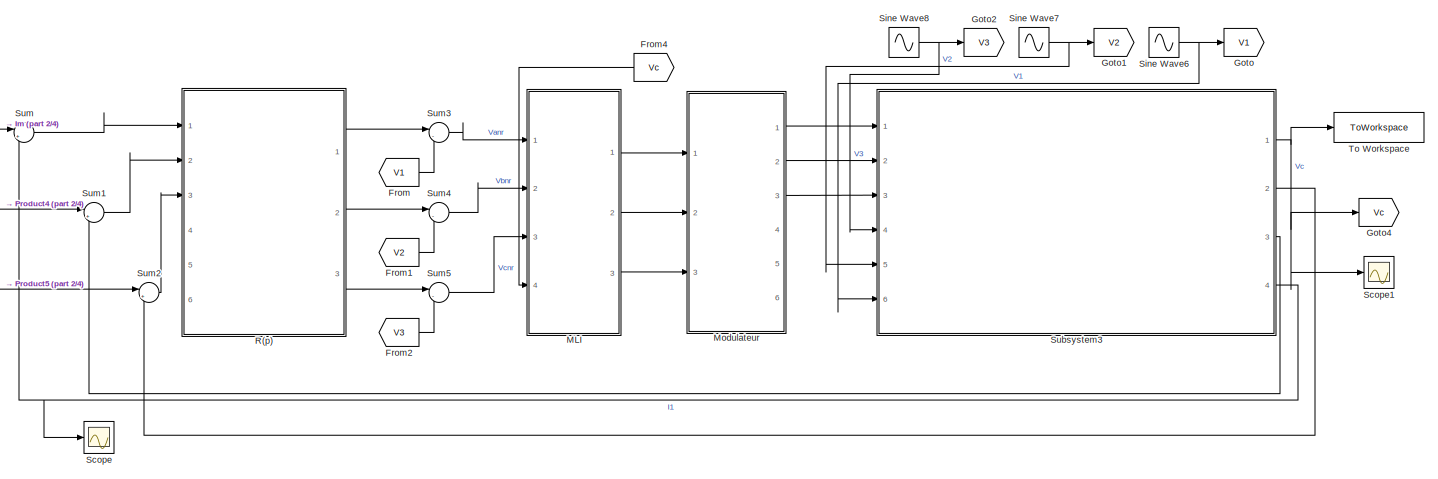
[diagram: root canvas - part 1/4, top center region]
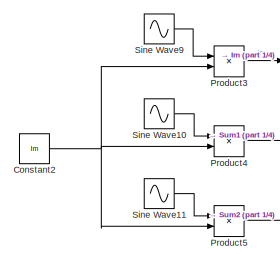
[diagram: root canvas - part 2/4, top left region]
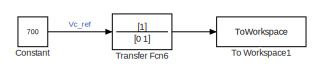
[diagram: root canvas - part 3/4, middle left region]
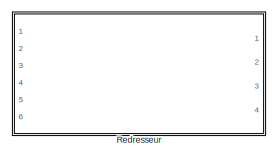
[diagram: root canvas - part 4/4, bottom right region]
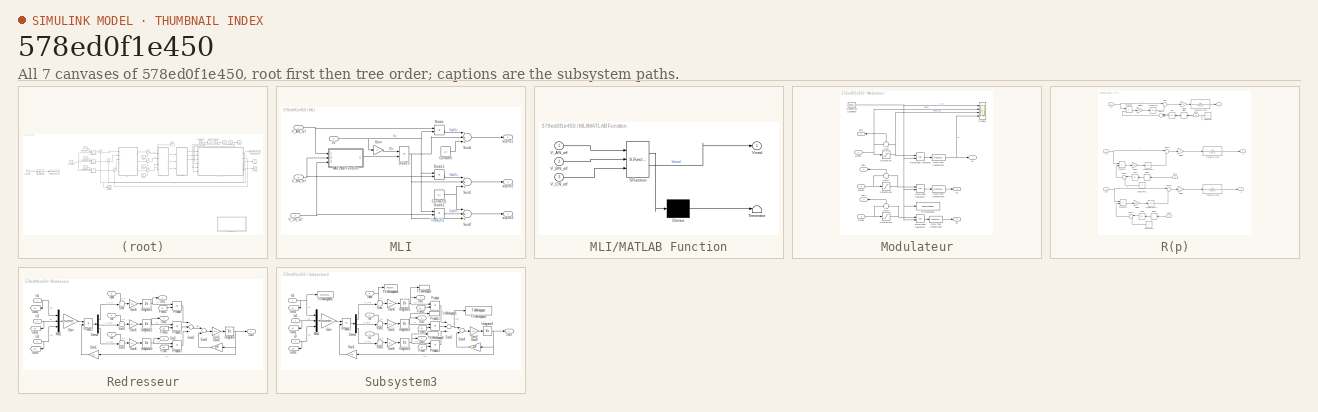
[diagram: thumbnail index - all 7 canvases of the model, root first then tree order]
MODEL slx_578ed0f1e450
KIND model
CONFIG AbsTol = auto
CONFIG EnableMultiTasking = off
CONFIG FixedStep = 1e-6
CONFIG MaxStep = auto
CONFIG MinStep = auto
CONFIG RelTol = 1e-3
CONFIG SampleTimeConstraint = Unconstrained
CONFIG Solver = ode8
CONFIG SolverName = ode8
CONFIG StartTime = 0.0
CONFIG StopTime = 0.1
BLOCK [Constant] Constant
  Value = 700
BLOCK [Constant] Constant2
  Value = Im
BLOCK [From] From
  GotoTag = V1
BLOCK [From] From1
  GotoTag = V2
BLOCK [From] From2
  GotoTag = V3
BLOCK [From] From4
  GotoTag = Vc
BLOCK [Goto] Goto
  GotoTag = V1
BLOCK [Goto] Goto1
  GotoTag = V2
BLOCK [Goto] Goto2
  GotoTag = V3
BLOCK [Goto] Goto4
  GotoTag = Vc
BLOCK [SubSystem] MLI
  Ports = [4, 3]
  RequestExecContextInheritance = off
BLOCK [Constant] MLI/Constant
  Value = 1/2
BLOCK [Constant] MLI/Constant1
  Value = 1/2
BLOCK [Product] MLI/Divide
  InputSameDT = off
  Inputs = */
  OutDataTypeStr = Inherit: Inherit via internal rule
  Ports = [2, 1]
  RndMeth = Floor
  SaturateOnIntegerOverflow = off
BLOCK [Product] MLI/Divide1
  InputSameDT = off
  Inputs = /*
  OutDataTypeStr = Inherit: Inherit via internal rule
  Ports = [2, 1]
  RndMeth = Floor
  SaturateOnIntegerOverflow = off
BLOCK [Product] MLI/Divide2
  InputSameDT = off
  Inputs = /*
  OutDataTypeStr = Inherit: Inherit via internal rule
  Ports = [2, 1]
  RndMeth = Floor
  SaturateOnIntegerOverflow = off
BLOCK [Product] MLI/Divide3
  InputSameDT = off
  Inputs = /*
  OutDataTypeStr = Inherit: Inherit via internal rule
  Ports = [2, 1]
  RndMeth = Floor
  SaturateOnIntegerOverflow = off
BLOCK [Gain] MLI/Gain
  Gain = 2
  OutDataTypeStr = Inherit: Inherit via internal rule
  ParamDataTypeStr = Inherit: Inherit via internal rule
  SaturateOnIntegerOverflow = off
BLOCK [SubSystem] MLI/MATLAB Function
  ErrorFcn = Stateflow.Translate.translate
  PermitHierarchicalResolution = ExplicitOnly
  Ports = [3, 1]
  RequestExecContextInheritance = off
  SFBlockType = MATLAB Function
  TreatAsAtomicUnit = on
BLOCK [Demux] MLI/MATLAB Function/ Demux 
  DisplayOption = bar
  Outputs = 1
  Ports = [1, 1]
BLOCK [S-Function] MLI/MATLAB Function/ SFunction 
  EnableBusSupport = on
  FunctionName = sf_sfun
  PortCounts = [3 2]
  Ports = [3, 2]
  SFcnIsStateOwnerBlock = off
  SFunctionDeploymentMode = off
  Tag = Stateflow S-Function Redresseur_MLI_3Ph_MLI_antiwindup_sign 2
BLOCK [Terminator] MLI/MATLAB Function/ Terminator 
BLOCK [Inport] MLI/MATLAB Function/V_AN_ref
  IconDisplay = Port number
BLOCK [Inport] MLI/MATLAB Function/V_BN_ref
  IconDisplay = Port number
  Port = 2
BLOCK [Inport] MLI/MATLAB Function/V_CN_ref
  IconDisplay = Port number
  Port = 3
BLOCK [Outport] MLI/MATLAB Function/Vmed
  IconDisplay = Port number
  VectorParamsAs1DForOutWhenUnconnected = on
BLOCK [Sum] MLI/Sum1
  InputSameDT = off
  Inputs = +++
  OutDataTypeStr = Inherit: Inherit via internal rule
  Ports = [3, 1]
  SaturateOnIntegerOverflow = off
BLOCK [Sum] MLI/Sum2
  InputSameDT = off
  Inputs = +++
  OutDataTypeStr = Inherit: Inherit via internal rule
  Ports = [3, 1]
  SaturateOnIntegerOverflow = off
BLOCK [Sum] MLI/Sum3
  InputSameDT = off
  Inputs = +++
  OutDataTypeStr = Inherit: Inherit via internal rule
  Ports = [3, 1]
  SaturateOnIntegerOverflow = off
BLOCK [Inport] MLI/V_AN_ref
  IconDisplay = Port number
BLOCK [Inport] MLI/V_BN_ref
  IconDisplay = Port number
  Port = 2
BLOCK [Inport] MLI/V_CN_ref
  IconDisplay = Port number
  Port = 3
BLOCK [Inport] MLI/Vc
  IconDisplay = Port number
  Port = 4
BLOCK [Outport] MLI/alpha1
  IconDisplay = Port number
  VectorParamsAs1DForOutWhenUnconnected = on
BLOCK [Outport] MLI/alpha2
  IconDisplay = Port number
  Port = 2
  VectorParamsAs1DForOutWhenUnconnected = on
BLOCK [Outport] MLI/alpha3
  IconDisplay = Port number
  Port = 3
  VectorParamsAs1DForOutWhenUnconnected = on
BLOCK [SubSystem] Modulateur
  Ports = [3, 6]
  RequestExecContextInheritance = off
BLOCK [DataTypeConversion] Modulateur/Data Type Conversion
  RndMeth = Floor
  SaturateOnIntegerOverflow = off
BLOCK [DataTypeConversion] Modulateur/Data Type Conversion1
  RndMeth = Floor
  SaturateOnIntegerOverflow = off
BLOCK [DataTypeConversion] Modulateur/Data Type Conversion2
  RndMeth = Floor
  SaturateOnIntegerOverflow = off
BLOCK [RelationalOperator] Modulateur/Relational Operator
  InputSameDT = off
  OutDataTypeStr = boolean
  Ports = [2, 1]
  RndMeth = Simplest
BLOCK [RelationalOperator] Modulateur/Relational Operator1
  InputSameDT = off
  OutDataTypeStr = boolean
  Ports = [2, 1]
  RndMeth = Simplest
BLOCK [RelationalOperator] Modulateur/Relational Operator2
  InputSameDT = off
  OutDataTypeStr = boolean
  Ports = [2, 1]
  RndMeth = Simplest
BLOCK [Reference] Modulateur/Repeating Sequence  REF=simulink/Sources/Repeating
Sequence
  Ports = [0, 1]
  SourceBlock = simulink/Sources/Repeating\nSequence
  SourceProductBaseCode = SL
  SourceProductName = Simulink
  SourceType = Repeating table
BLOCK [Saturate] Modulateur/Saturation
  InputPortMap = u0
  LowerLimit = 0
  Ports = [1, 1]
  UpperLimit = 1
BLOCK [Saturate] Modulateur/Saturation1
  InputPortMap = u0
  LowerLimit = 0
  Ports = [1, 1]
  UpperLimit = 1
BLOCK [Saturate] Modulateur/Saturation2
  InputPortMap = u0
  LowerLimit = 0
  Ports = [1, 1]
  UpperLimit = 1
BLOCK [Scope] Modulateur/Scope1
  Floating = off
  NumInputPorts = 4
  Ports = [4]
  ScopeSpecificationString = Simulink.scopes.TimeScopeBlockCfg('CurrentConfiguration', extmgr.ConfigurationSet(extmgr.Configuration('Core','General UI',true),extmgr.Configuration('Core','Source UI',true),extmgr.Configuration('Sources','WiredSimulink',true,'DataLoggingVariableName','ScopeData1'),extmgr.Configuration('Visuals','Time Domain',true,'SerializedDisplays',{struct('MinYLimReal','-0.125','MaxYLimReal','1.125','YLabelRe...<+1516ch>
BLOCK [Sum] Modulateur/Sum
  IconShape = round
  InputSameDT = off
  Inputs = +-
  OutDataTypeStr = Inherit: Inherit via internal rule
  Ports = [2, 1]
  SaturateOnIntegerOverflow = off
BLOCK [Sum] Modulateur/Sum1
  IconShape = round
  InputSameDT = off
  Inputs = +-
  OutDataTypeStr = Inherit: Inherit via internal rule
  Ports = [2, 1]
  SaturateOnIntegerOverflow = off
BLOCK [Sum] Modulateur/Sum2
  IconShape = round
  InputSameDT = off
  Inputs = +-
  OutDataTypeStr = Inherit: Inherit via internal rule
  Ports = [2, 1]
  SaturateOnIntegerOverflow = off
BLOCK [ToWorkspace] Modulateur/To Workspace
  FixptAsFi = on
  MaxDataPoints = inf
  Ports = [1]
  SampleTime = -1
  Save2DSignal = 3-D array (concatenate along third dimension)
  SaveFormat = Timeseries
  VariableName = carier
BLOCK [Inport] Modulateur/alpha1
  IconDisplay = Port number
BLOCK [Inport] Modulateur/alpha2
  IconDisplay = Port number
  Port = 2
BLOCK [Inport] Modulateur/alpha3
  IconDisplay = Port number
  Port = 3
BLOCK [Outport] Modulateur/sat1
  IconDisplay = Port number
  Port = 4
  VectorParamsAs1DForOutWhenUnconnected = on
BLOCK [Outport] Modulateur/sat2
  IconDisplay = Port number
  Port = 5
  VectorParamsAs1DForOutWhenUnconnected = on
BLOCK [Outport] Modulateur/sat3
  IconDisplay = Port number
  Port = 6
  VectorParamsAs1DForOutWhenUnconnected = on
BLOCK [Outport] Modulateur/u1
  IconDisplay = Port number
  VectorParamsAs1DForOutWhenUnconnected = on
BLOCK [Outport] Modulateur/u2
  IconDisplay = Port number
  Port = 2
  VectorParamsAs1DForOutWhenUnconnected = on
BLOCK [Outport] Modulateur/u3
  IconDisplay = Port number
  Port = 3
  VectorParamsAs1DForOutWhenUnconnected = on
BLOCK [Product] Product3
  InputSameDT = off
  OutDataTypeStr = Inherit: Inherit via internal rule
  Ports = [2, 1]
  RndMeth = Floor
  SaturateOnIntegerOverflow = off
BLOCK [Product] Product4
  InputSameDT = off
  OutDataTypeStr = Inherit: Inherit via internal rule
  Ports = [2, 1]
  RndMeth = Floor
  SaturateOnIntegerOverflow = off
BLOCK [Product] Product5
  InputSameDT = off
  OutDataTypeStr = Inherit: Inherit via internal rule
  Ports = [2, 1]
  RndMeth = Floor
  SaturateOnIntegerOverflow = off
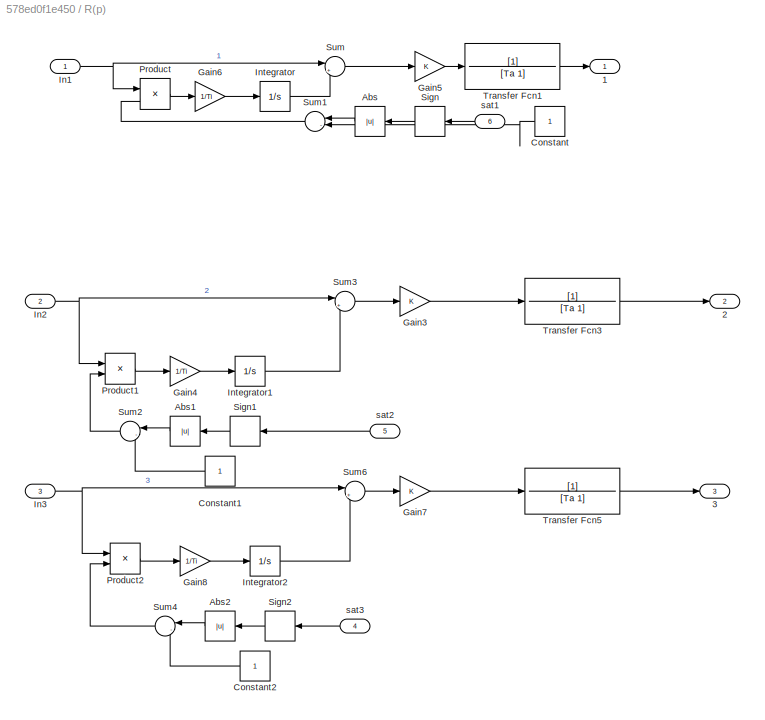
BLOCK [SubSystem] R(p)
  Ports = [6, 3]
  RequestExecContextInheritance = off
BLOCK [Outport] R(p)/1
  IconDisplay = Port number
  VectorParamsAs1DForOutWhenUnconnected = on
BLOCK [Outport] R(p)/2
  IconDisplay = Port number
  Port = 2
  VectorParamsAs1DForOutWhenUnconnected = on
BLOCK [Outport] R(p)/3
  IconDisplay = Port number
  Port = 3
  VectorParamsAs1DForOutWhenUnconnected = on
BLOCK [Abs] R(p)/Abs
  SaturateOnIntegerOverflow = off
BLOCK [Abs] R(p)/Abs1
  SaturateOnIntegerOverflow = off
BLOCK [Abs] R(p)/Abs2
  SaturateOnIntegerOverflow = off
BLOCK [Constant] R(p)/Constant
BLOCK [Constant] R(p)/Constant1
BLOCK [Constant] R(p)/Constant2
BLOCK [Gain] R(p)/Gain3
  Gain = K
  OutDataTypeStr = Inherit: Inherit via internal rule
  ParamDataTypeStr = Inherit: Inherit via internal rule
  SaturateOnIntegerOverflow = off
BLOCK [Gain] R(p)/Gain4
  Gain = 1/Ti
  OutDataTypeStr = Inherit: Inherit via internal rule
  ParamDataTypeStr = Inherit: Inherit via internal rule
  SaturateOnIntegerOverflow = off
BLOCK [Gain] R(p)/Gain5
  Gain = K
  OutDataTypeStr = Inherit: Inherit via internal rule
  ParamDataTypeStr = Inherit: Inherit via internal rule
  SaturateOnIntegerOverflow = off
BLOCK [Gain] R(p)/Gain6
  Gain = 1/Ti
  OutDataTypeStr = Inherit: Inherit via internal rule
  ParamDataTypeStr = Inherit: Inherit via internal rule
  SaturateOnIntegerOverflow = off
BLOCK [Gain] R(p)/Gain7
  Gain = K
  OutDataTypeStr = Inherit: Inherit via internal rule
  ParamDataTypeStr = Inherit: Inherit via internal rule
  SaturateOnIntegerOverflow = off
BLOCK [Gain] R(p)/Gain8
  Gain = 1/Ti
  OutDataTypeStr = Inherit: Inherit via internal rule
  ParamDataTypeStr = Inherit: Inherit via internal rule
  SaturateOnIntegerOverflow = off
BLOCK [Inport] R(p)/In1
  IconDisplay = Signal name
BLOCK [Inport] R(p)/In2
  IconDisplay = Signal name
  Port = 2
BLOCK [Inport] R(p)/In3
  IconDisplay = Signal name
  Port = 3
BLOCK [Integrator] R(p)/Integrator
  InitialCondition = 1
  Ports = [1, 1]
BLOCK [Integrator] R(p)/Integrator1
  InitialCondition = 1
  Ports = [1, 1]
BLOCK [Integrator] R(p)/Integrator2
  Ports = [1, 1]
BLOCK [Product] R(p)/Product
  InputSameDT = off
  OutDataTypeStr = Inherit: Inherit via internal rule
  Ports = [2, 1]
  RndMeth = Floor
  SaturateOnIntegerOverflow = off
BLOCK [Product] R(p)/Product1
  InputSameDT = off
  OutDataTypeStr = Inherit: Inherit via internal rule
  Ports = [2, 1]
  RndMeth = Floor
  SaturateOnIntegerOverflow = off
BLOCK [Product] R(p)/Product2
  InputSameDT = off
  OutDataTypeStr = Inherit: Inherit via internal rule
  Ports = [2, 1]
  RndMeth = Floor
  SaturateOnIntegerOverflow = off
BLOCK [Signum] R(p)/Sign
BLOCK [Signum] R(p)/Sign1
BLOCK [Signum] R(p)/Sign2
BLOCK [Sum] R(p)/Sum
  IconShape = round
  InputSameDT = off
  Inputs = |++
  OutDataTypeStr = Inherit: Inherit via internal rule
  Ports = [2, 1]
  SaturateOnIntegerOverflow = off
BLOCK [Sum] R(p)/Sum1
  IconShape = round
  InputSameDT = off
  Inputs = |-+
  OutDataTypeStr = Inherit: Inherit via internal rule
  Ports = [2, 1]
  SaturateOnIntegerOverflow = off
BLOCK [Sum] R(p)/Sum2
  IconShape = round
  InputSameDT = off
  Inputs = |-+
  OutDataTypeStr = Inherit: Inherit via internal rule
  Ports = [2, 1]
  SaturateOnIntegerOverflow = off
BLOCK [Sum] R(p)/Sum3
  IconShape = round
  InputSameDT = off
  Inputs = |++
  OutDataTypeStr = Inherit: Inherit via internal rule
  Ports = [2, 1]
  SaturateOnIntegerOverflow = off
BLOCK [Sum] R(p)/Sum4
  IconShape = round
  InputSameDT = off
  Inputs = |-+
  OutDataTypeStr = Inherit: Inherit via internal rule
  Ports = [2, 1]
  SaturateOnIntegerOverflow = off
BLOCK [Sum] R(p)/Sum6
  IconShape = round
  InputSameDT = off
  Inputs = |++
  OutDataTypeStr = Inherit: Inherit via internal rule
  Ports = [2, 1]
  SaturateOnIntegerOverflow = off
BLOCK [TransferFcn] R(p)/Transfer Fcn1
  Denominator = [Ta 1]
BLOCK [TransferFcn] R(p)/Transfer Fcn3
  Denominator = [Ta 1]
BLOCK [TransferFcn] R(p)/Transfer Fcn5
  Denominator = [Ta 1]
BLOCK [Inport] R(p)/sat1
  IconDisplay = Port number
  Port = 6
BLOCK [Inport] R(p)/sat2
  IconDisplay = Port number
  Port = 5
BLOCK [Inport] R(p)/sat3
  IconDisplay = Port number
  Port = 4
BLOCK [SubSystem] Redresseur
  Commented = on
  Ports = [6, 4]
  RequestExecContextInheritance = off
BLOCK [Demux] Redresseur/Demux
  DisplayOption = bar
  Outputs = 3
  Ports = [1, 3]
BLOCK [From] Redresseur/From
  GotoTag = u3
BLOCK [From] Redresseur/From2
  GotoTag = u1
BLOCK [From] Redresseur/From3
  GotoTag = u2
BLOCK [Gain] Redresseur/Gain
  Gain = inverter_matrix
  Multiplication = Matrix(K*u)
  OutDataTypeStr = Inherit: Inherit via internal rule
  ParamDataTypeStr = Inherit: Inherit via internal rule
  SaturateOnIntegerOverflow = off
BLOCK [Gain] Redresseur/Gain1
  Gain = 1/3
  OutDataTypeStr = Inherit: Inherit via internal rule
  ParamDataTypeStr = Inherit: Inherit via internal rule
  SaturateOnIntegerOverflow = off
BLOCK [Gain] Redresseur/Gain2
  Gain = 1/C
  OutDataTypeStr = Inherit: Inherit via internal rule
  ParamDataTypeStr = Inherit: Inherit via internal rule
  SaturateOnIntegerOverflow = off
BLOCK [Gain] Redresseur/Gain3
  Gain = 1/R
  OutDataTypeStr = Inherit: Inherit via internal rule
  ParamDataTypeStr = Inherit: Inherit via internal rule
  SaturateOnIntegerOverflow = off
BLOCK [Gain] Redresseur/Gain4
  Gain = 1/L
  OutDataTypeStr = Inherit: Inherit via internal rule
  ParamDataTypeStr = Inherit: Inherit via internal rule
  SaturateOnIntegerOverflow = off
BLOCK [Gain] Redresseur/Gain5
  Gain = 1/L
  OutDataTypeStr = Inherit: Inherit via internal rule
  ParamDataTypeStr = Inherit: Inherit via internal rule
  SaturateOnIntegerOverflow = off
BLOCK [Gain] Redresseur/Gain6
  Gain = 1/L
  OutDataTypeStr = Inherit: Inherit via internal rule
  ParamDataTypeStr = Inherit: Inherit via internal rule
  SaturateOnIntegerOverflow = off
BLOCK [Goto] Redresseur/Goto1
  GotoTag = u2
BLOCK [Goto] Redresseur/Goto2
  GotoTag = u1
BLOCK [Goto] Redresseur/Goto3
  GotoTag = u3
BLOCK [Inport] Redresseur/In1
  IconDisplay = Signal name
BLOCK [Inport] Redresseur/In2
  IconDisplay = Signal name
  Port = 2
BLOCK [Inport] Redresseur/In3
  IconDisplay = Signal name
  Port = 3
BLOCK [Inport] Redresseur/In4
  IconDisplay = Signal name
  Port = 5
BLOCK [Inport] Redresseur/In5
  IconDisplay = Signal name
  Port = 4
BLOCK [Inport] Redresseur/Input
  IconDisplay = Signal name
  Port = 6
BLOCK [Integrator] Redresseur/Integrator
  Ports = [1, 1]
BLOCK [Integrator] Redresseur/Integrator1
  Ports = [1, 1]
BLOCK [Integrator] Redresseur/Integrator2
  Ports = [1, 1]
BLOCK [Integrator] Redresseur/Integrator3
  Ports = [1, 1]
BLOCK [Mux] Redresseur/Mux1
  DisplayOption = bar
  Inputs = 3
  Ports = [3, 1]
BLOCK [Outport] Redresseur/Out1
  IconDisplay = Signal name
  VectorParamsAs1DForOutWhenUnconnected = on
BLOCK [Outport] Redresseur/Out2
  IconDisplay = Signal name
  Port = 2
  VectorParamsAs1DForOutWhenUnconnected = on
BLOCK [Outport] Redresseur/Out3
  IconDisplay = Signal name
  Port = 3
  VectorParamsAs1DForOutWhenUnconnected = on
BLOCK [Outport] Redresseur/Out4
  IconDisplay = Signal name
  Port = 4
  VectorParamsAs1DForOutWhenUnconnected = on
BLOCK [Product] Redresseur/Product
  InputSameDT = off
  OutDataTypeStr = Inherit: Inherit via internal rule
  Ports = [2, 1]
  RndMeth = Floor
  SaturateOnIntegerOverflow = off
BLOCK [Product] Redresseur/Product1
  InputSameDT = off
  OutDataTypeStr = Inherit: Inherit via internal rule
  Ports = [2, 1]
  RndMeth = Floor
  SaturateOnIntegerOverflow = off
BLOCK [Product] Redresseur/Product2
  InputSameDT = off
  OutDataTypeStr = Inherit: Inherit via internal rule
  Ports = [2, 1]
  RndMeth = Floor
  SaturateOnIntegerOverflow = off
BLOCK [Product] Redresseur/Product3
  InputSameDT = off
  OutDataTypeStr = Inherit: Inherit via internal rule
  Ports = [2, 1]
  RndMeth = Floor
  SaturateOnIntegerOverflow = off
BLOCK [Sum] Redresseur/Sum
  IconShape = round
  InputSameDT = off
  Inputs = +-|
  OutDataTypeStr = Inherit: Inherit via internal rule
  Ports = [2, 1]
  SaturateOnIntegerOverflow = off
BLOCK [Sum] Redresseur/Sum1
  IconShape = round
  InputSameDT = off
  Inputs = +-|
  OutDataTypeStr = Inherit: Inherit via internal rule
  Ports = [2, 1]
  SaturateOnIntegerOverflow = off
BLOCK [Sum] Redresseur/Sum2
  IconShape = round
  InputSameDT = off
  Inputs = +-|
  OutDataTypeStr = Inherit: Inherit via internal rule
  Ports = [2, 1]
  SaturateOnIntegerOverflow = off
BLOCK [Sum] Redresseur/Sum3
  InputSameDT = off
  Inputs = +++
  OutDataTypeStr = Inherit: Inherit via internal rule
  Ports = [3, 1]
  SaturateOnIntegerOverflow = off
BLOCK [Sum] Redresseur/Sum4
  InputSameDT = off
  Inputs = +-
  OutDataTypeStr = Inherit: Inherit via internal rule
  Ports = [2, 1]
  SaturateOnIntegerOverflow = off
BLOCK [Scope] Scope
  Floating = off
  NumInputPorts = 1
  Ports = [1]
  ScopeSpecificationString = Simulink.scopes.TimeScopeBlockCfg('CurrentConfiguration', extmgr.ConfigurationSet(extmgr.Configuration('Core','General UI',true,'FigureColor',[1 1 1]),extmgr.Configuration('Core','Source UI',true),extmgr.Configuration('Sources','WiredSimulink',true,'DataLoggingVariableName','ScopeData1'),extmgr.Configuration('Visuals','Time Domain',true,'SerializedDisplays',{struct('MinYLimReal','73.27677','MaxYLi...<+1900ch>
BLOCK [Scope] Scope1
  Floating = off
  NumInputPorts = 1
  Ports = [1]
  ScopeSpecificationString = Simulink.scopes.TimeScopeBlockCfg('CurrentConfiguration', extmgr.ConfigurationSet(extmgr.Configuration('Core','General UI',true),extmgr.Configuration('Core','Source UI',true),extmgr.Configuration('Sources','WiredSimulink',true,'DataLoggingVariableName','ScopeData1'),extmgr.Configuration('Visuals','Time Domain',true,'SerializedDisplays',{struct('MinYLimReal','490.90799','MaxYLimReal','724.27865','Y...<+1446ch>
BLOCK [Sin] Sine Wave10
  Frequency = 2*50*pi
  Phase = -2*pi/3
  Ports = [0, 1]
  SampleTime = 0
BLOCK [Sin] Sine Wave11
  Frequency = 2*50*pi
  Phase = -4*pi/3
  Ports = [0, 1]
  SampleTime = 0
BLOCK [Sin] Sine Wave6
  Amplitude = V*sqrt(2)
  Frequency = 2*50*pi
  Ports = [0, 1]
  SampleTime = 0
BLOCK [Sin] Sine Wave7
  Amplitude = V*sqrt(2)
  Frequency = 2*50*pi
  Phase = -2*pi/3
  Ports = [0, 1]
  SampleTime = 0
BLOCK [Sin] Sine Wave8
  Amplitude = V*sqrt(2)
  Frequency = 2*50*pi
  Phase = -4*pi/3
  Ports = [0, 1]
  SampleTime = 0
BLOCK [Sin] Sine Wave9
  Frequency = 2*50*pi
  Ports = [0, 1]
  SampleTime = 0
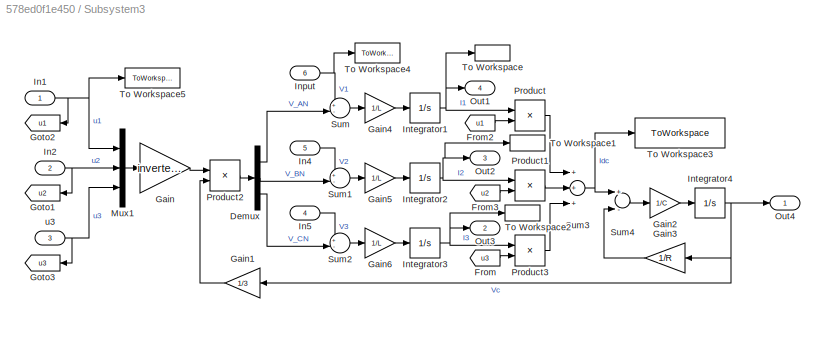
BLOCK [SubSystem] Subsystem3
  Ports = [6, 4]
  RequestExecContextInheritance = off
BLOCK [Demux] Subsystem3/Demux
  DisplayOption = bar
  Outputs = 3
  Ports = [1, 3]
BLOCK [From] Subsystem3/From
  GotoTag = u3
BLOCK [From] Subsystem3/From2
  GotoTag = u1
BLOCK [From] Subsystem3/From3
  GotoTag = u2
BLOCK [Gain] Subsystem3/Gain
  Gain = inverter_matrix
  Multiplication = Matrix(K*u)
  OutDataTypeStr = Inherit: Inherit via internal rule
  ParamDataTypeStr = Inherit: Inherit via internal rule
  SaturateOnIntegerOverflow = off
BLOCK [Gain] Subsystem3/Gain1
  Gain = 1/3
  OutDataTypeStr = Inherit: Inherit via internal rule
  ParamDataTypeStr = Inherit: Inherit via internal rule
  SaturateOnIntegerOverflow = off
BLOCK [Gain] Subsystem3/Gain2
  Gain = 1/C
  OutDataTypeStr = Inherit: Inherit via internal rule
  ParamDataTypeStr = Inherit: Inherit via internal rule
  SaturateOnIntegerOverflow = off
BLOCK [Gain] Subsystem3/Gain3
  Gain = 1/R
  OutDataTypeStr = Inherit: Inherit via internal rule
  ParamDataTypeStr = Inherit: Inherit via internal rule
  SaturateOnIntegerOverflow = off
BLOCK [Gain] Subsystem3/Gain4
  Gain = 1/L
  OutDataTypeStr = Inherit: Inherit via internal rule
  ParamDataTypeStr = Inherit: Inherit via internal rule
  SaturateOnIntegerOverflow = off
BLOCK [Gain] Subsystem3/Gain5
  Gain = 1/L
  OutDataTypeStr = Inherit: Inherit via internal rule
  ParamDataTypeStr = Inherit: Inherit via internal rule
  SaturateOnIntegerOverflow = off
BLOCK [Gain] Subsystem3/Gain6
  Gain = 1/L
  OutDataTypeStr = Inherit: Inherit via internal rule
  ParamDataTypeStr = Inherit: Inherit via internal rule
  SaturateOnIntegerOverflow = off
BLOCK [Goto] Subsystem3/Goto1
  GotoTag = u2
BLOCK [Goto] Subsystem3/Goto2
  GotoTag = u1
BLOCK [Goto] Subsystem3/Goto3
  GotoTag = u3
BLOCK [Inport] Subsystem3/In1
  IconDisplay = Signal name
BLOCK [Inport] Subsystem3/In2
  IconDisplay = Signal name
  Port = 2
BLOCK [Inport] Subsystem3/In4
  IconDisplay = Signal name
  Port = 5
BLOCK [Inport] Subsystem3/In5
  IconDisplay = Signal name
  Port = 4
BLOCK [Inport] Subsystem3/Input
  IconDisplay = Signal name
  Port = 6
BLOCK [Integrator] Subsystem3/Integrator1
  Ports = [1, 1]
BLOCK [Integrator] Subsystem3/Integrator2
  Ports = [1, 1]
BLOCK [Integrator] Subsystem3/Integrator3
  Ports = [1, 1]
BLOCK [Integrator] Subsystem3/Integrator4
  InitialCondition = V*sqrt(2)*sqrt(3)
  Ports = [1, 1]
BLOCK [Mux] Subsystem3/Mux1
  DisplayOption = bar
  Inputs = 3
  Ports = [3, 1]
BLOCK [Outport] Subsystem3/Out1
  IconDisplay = Signal name
  Port = 4
  VectorParamsAs1DForOutWhenUnconnected = on
BLOCK [Outport] Subsystem3/Out2
  IconDisplay = Signal name
  Port = 3
  VectorParamsAs1DForOutWhenUnconnected = on
BLOCK [Outport] Subsystem3/Out3
  IconDisplay = Signal name
  Port = 2
  VectorParamsAs1DForOutWhenUnconnected = on
BLOCK [Outport] Subsystem3/Out4
  IconDisplay = Signal name
  VectorParamsAs1DForOutWhenUnconnected = on
BLOCK [Product] Subsystem3/Product
  InputSameDT = off
  OutDataTypeStr = Inherit: Inherit via internal rule
  Ports = [2, 1]
  RndMeth = Floor
  SaturateOnIntegerOverflow = off
BLOCK [Product] Subsystem3/Product1
  InputSameDT = off
  OutDataTypeStr = Inherit: Inherit via internal rule
  Ports = [2, 1]
  RndMeth = Floor
  SaturateOnIntegerOverflow = off
BLOCK [Product] Subsystem3/Product2
  InputSameDT = off
  OutDataTypeStr = Inherit: Inherit via internal rule
  Ports = [2, 1]
  RndMeth = Floor
  SaturateOnIntegerOverflow = off
BLOCK [Product] Subsystem3/Product3
  InputSameDT = off
  OutDataTypeStr = Inherit: Inherit via internal rule
  Ports = [2, 1]
  RndMeth = Floor
  SaturateOnIntegerOverflow = off
BLOCK [Sum] Subsystem3/Sum
  IconShape = round
  InputSameDT = off
  Inputs = +-|
  OutDataTypeStr = Inherit: Inherit via internal rule
  Ports = [2, 1]
  SaturateOnIntegerOverflow = off
BLOCK [Sum] Subsystem3/Sum1
  IconShape = round
  InputSameDT = off
  Inputs = +-|
  OutDataTypeStr = Inherit: Inherit via internal rule
  Ports = [2, 1]
  SaturateOnIntegerOverflow = off
BLOCK [Sum] Subsystem3/Sum2
  IconShape = round
  InputSameDT = off
  Inputs = +-|
  OutDataTypeStr = Inherit: Inherit via internal rule
  Ports = [2, 1]
  SaturateOnIntegerOverflow = off
BLOCK [Sum] Subsystem3/Sum3
  InputSameDT = off
  Inputs = +++
  OutDataTypeStr = Inherit: Inherit via internal rule
  Ports = [3, 1]
  SaturateOnIntegerOverflow = off
BLOCK [Sum] Subsystem3/Sum4
  InputSameDT = off
  Inputs = +-
  OutDataTypeStr = Inherit: Inherit via internal rule
  Ports = [2, 1]
  SaturateOnIntegerOverflow = off
BLOCK [ToWorkspace] Subsystem3/To Workspace
  FixptAsFi = on
  MaxDataPoints = inf
  Ports = [1]
  SampleTime = -1
  Save2DSignal = 3-D array (concatenate along third dimension)
  SaveFormat = Timeseries
  VariableName = I1
BLOCK [ToWorkspace] Subsystem3/To Workspace1
  FixptAsFi = on
  MaxDataPoints = inf
  Ports = [1]
  SampleTime = -1
  Save2DSignal = 3-D array (concatenate along third dimension)
  SaveFormat = Timeseries
  VariableName = I2
BLOCK [ToWorkspace] Subsystem3/To Workspace2
  FixptAsFi = on
  MaxDataPoints = inf
  Ports = [1]
  SampleTime = -1
  Save2DSignal = 3-D array (concatenate along third dimension)
  SaveFormat = Timeseries
  VariableName = I3
BLOCK [ToWorkspace] Subsystem3/To Workspace3
  FixptAsFi = on
  MaxDataPoints = inf
  Ports = [1]
  SampleTime = -1
  Save2DSignal = 3-D array (concatenate along third dimension)
  SaveFormat = Timeseries
  VariableName = Idc
BLOCK [ToWorkspace] Subsystem3/To Workspace4
  FixptAsFi = on
  MaxDataPoints = inf
  Ports = [1]
  SampleTime = -1
  Save2DSignal = 3-D array (concatenate along third dimension)
  SaveFormat = Timeseries
  VariableName = V1
BLOCK [ToWorkspace] Subsystem3/To Workspace5
  FixptAsFi = on
  MaxDataPoints = inf
  Ports = [1]
  SampleTime = -1
  Save2DSignal = 3-D array (concatenate along third dimension)
  SaveFormat = Timeseries
  VariableName = u1
BLOCK [Inport] Subsystem3/u3
  IconDisplay = Signal name
  Port = 3
BLOCK [Sum] Sum
  IconShape = round
  InputSameDT = off
  Inputs = |+-
  OutDataTypeStr = Inherit: Inherit via internal rule
  Ports = [2, 1]
  SaturateOnIntegerOverflow = off
BLOCK [Sum] Sum1
  IconShape = round
  InputSameDT = off
  Inputs = |+-
  OutDataTypeStr = Inherit: Inherit via internal rule
  Ports = [2, 1]
  SaturateOnIntegerOverflow = off
BLOCK [Sum] Sum2
  IconShape = round
  InputSameDT = off
  Inputs = |+-
  OutDataTypeStr = Inherit: Inherit via internal rule
  Ports = [2, 1]
  SaturateOnIntegerOverflow = off
BLOCK [Sum] Sum3
  IconShape = round
  InputSameDT = off
  Inputs = |-+
  OutDataTypeStr = Inherit: Inherit via internal rule
  Ports = [2, 1]
  SaturateOnIntegerOverflow = off
BLOCK [Sum] Sum4
  IconShape = round
  InputSameDT = off
  Inputs = |-+
  OutDataTypeStr = Inherit: Inherit via internal rule
  Ports = [2, 1]
  SaturateOnIntegerOverflow = off
BLOCK [Sum] Sum5
  IconShape = round
  InputSameDT = off
  Inputs = |-+
  OutDataTypeStr = Inherit: Inherit via internal rule
  Ports = [2, 1]
  SaturateOnIntegerOverflow = off
BLOCK [ToWorkspace] To Workspace
  FixptAsFi = on
  MaxDataPoints = inf
  Ports = [1]
  SampleTime = -1
  Save2DSignal = 3-D array (concatenate along third dimension)
  SaveFormat = Timeseries
  VariableName = Vc
BLOCK [ToWorkspace] To Workspace1
  FixptAsFi = on
  MaxDataPoints = inf
  Ports = [1]
  SampleTime = -1
  Save2DSignal = 3-D array (concatenate along third dimension)
  SaveFormat = Timeseries
  VariableName = Vc_ref
BLOCK [TransferFcn] Transfer Fcn6
  Denominator = [0 1]
ANNOTATION (root): Compensateur
NET Constant2:1 -> Product3:2, Product4:2, Product5:2
LINE Constant:1 -> Transfer Fcn6:1
LINE From1:1 -> Sum4:2
LINE From2:1 -> Sum5:2
LINE From4:1 -> MLI:4
LINE From:1 -> Sum3:2
NET MLI/Constant1:1 -> MLI/Sum1:3, MLI/Sum2:1
LINE MLI/Constant:1 -> MLI/Sum3:3
LINE MLI/Divide1:1 -> MLI/Sum1:1
LINE MLI/Divide2:1 -> MLI/Sum2:2
NET MLI/Divide3:1 -> MLI/Sum1:2, MLI/Sum2:3, MLI/Sum3:2
LINE MLI/Divide:1 -> MLI/Sum3:1
LINE MLI/Gain:1 -> MLI/Divide3:1
LINE MLI/MATLAB Function:1 -> MLI/Divide3:2
LINE MLI/Sum1:1 -> MLI/alpha2:1
LINE MLI/Sum2:1 -> MLI/alpha3:1
LINE MLI/Sum3:1 -> MLI/alpha1:1
NET MLI/V_AN_ref:1 -> MLI/Divide:1, MLI/MATLAB Function:1
NET MLI/V_BN_ref:1 -> MLI/Divide1:2, MLI/MATLAB Function:2
NET MLI/V_CN_ref:1 -> MLI/Divide2:2, MLI/MATLAB Function:3
NET MLI/Vc:1 -> MLI/Divide1:1, MLI/Divide2:1, MLI/Divide:2, MLI/Gain:1
LINE MLI:1 -> Modulateur:1
LINE MLI:2 -> Modulateur:2
LINE MLI:3 -> Modulateur:3
LINE Modulateur/Data Type Conversion1:1 -> Modulateur/u2:1
LINE Modulateur/Data Type Conversion2:1 -> Modulateur/u3:1
NET Modulateur/Data Type Conversion:1 -> Modulateur/Scope1:4, Modulateur/u1:1
LINE Modulateur/Relational Operator1:1 -> Modulateur/Data Type Conversion1:1
LINE Modulateur/Relational Operator2:1 -> Modulateur/Data Type Conversion2:1
LINE Modulateur/Relational Operator:1 -> Modulateur/Data Type Conversion:1
NET Modulateur/Repeating Sequence:1 -> Modulateur/Relational Operator1:2, Modulateur/Relational Operator2:2, Modulateur/Relational Operator:2, Modulateur/Scope1:1, Modulateur/To Workspace:1
NET Modulateur/Saturation1:1 -> Modulateur/Relational Operator1:1, Modulateur/Sum1:2
NET Modulateur/Saturation2:1 -> Modulateur/Relational Operator2:1, Modulateur/Sum2:2
NET Modulateur/Saturation:1 -> Modulateur/Relational Operator:1, Modulateur/Scope1:3, Modulateur/Sum:2
LINE Modulateur/Sum1:1 -> Modulateur/sat2:1
LINE Modulateur/Sum2:1 -> Modulateur/sat3:1
LINE Modulateur/Sum:1 -> Modulateur/sat1:1
NET Modulateur/alpha1:1 -> Modulateur/Saturation:1, Modulateur/Scope1:2, Modulateur/Sum:1
NET Modulateur/alpha2:1 -> Modulateur/Saturation1:1, Modulateur/Sum1:1
NET Modulateur/alpha3:1 -> Modulateur/Saturation2:1, Modulateur/Sum2:1
LINE Modulateur:1 -> Subsystem3:1
LINE Modulateur:2 -> Subsystem3:2
LINE Modulateur:3 -> Subsystem3:3
LINE Product3:1 -> Sum:1
LINE Product4:1 -> Sum1:1
LINE Product5:1 -> Sum2:1
LINE R(p)/Abs1:1 -> R(p)/Sum2:1
LINE R(p)/Abs2:1 -> R(p)/Sum4:1
LINE R(p)/Abs:1 -> R(p)/Sum1:1
LINE R(p)/Constant1:1 -> R(p)/Sum2:2
LINE R(p)/Constant2:1 -> R(p)/Sum4:2
LINE R(p)/Constant:1 -> R(p)/Sum1:2
LINE R(p)/Gain3:1 -> R(p)/Transfer Fcn3:1
LINE R(p)/Gain4:1 -> R(p)/Integrator1:1
LINE R(p)/Gain5:1 -> R(p)/Transfer Fcn1:1
LINE R(p)/Gain6:1 -> R(p)/Integrator:1
LINE R(p)/Gain7:1 -> R(p)/Transfer Fcn5:1
LINE R(p)/Gain8:1 -> R(p)/Integrator2:1
NET R(p)/In1:1 -> R(p)/Product:1, R(p)/Sum:1
NET R(p)/In2:1 -> R(p)/Product1:1, R(p)/Sum3:1
NET R(p)/In3:1 -> R(p)/Product2:1, R(p)/Sum6:1
LINE R(p)/Integrator1:1 -> R(p)/Sum3:2
LINE R(p)/Integrator2:1 -> R(p)/Sum6:2
LINE R(p)/Integrator:1 -> R(p)/Sum:2
LINE R(p)/Product1:1 -> R(p)/Gain4:1
LINE R(p)/Product2:1 -> R(p)/Gain8:1
LINE R(p)/Product:1 -> R(p)/Gain6:1
LINE R(p)/Sign1:1 -> R(p)/Abs1:1
LINE R(p)/Sign2:1 -> R(p)/Abs2:1
LINE R(p)/Sign:1 -> R(p)/Abs:1
LINE R(p)/Sum1:1 -> R(p)/Product:2
LINE R(p)/Sum2:1 -> R(p)/Product1:2
LINE R(p)/Sum3:1 -> R(p)/Gain3:1
LINE R(p)/Sum4:1 -> R(p)/Product2:2
LINE R(p)/Sum6:1 -> R(p)/Gain7:1
LINE R(p)/Sum:1 -> R(p)/Gain5:1
LINE R(p)/Transfer Fcn1:1 -> R(p)/1:1
LINE R(p)/Transfer Fcn3:1 -> R(p)/2:1
LINE R(p)/Transfer Fcn5:1 -> R(p)/3:1
LINE R(p)/sat1:1 -> R(p)/Sign:1
LINE R(p)/sat2:1 -> R(p)/Sign1:1
LINE R(p)/sat3:1 -> R(p)/Sign2:1
LINE R(p):1 -> Sum3:1
LINE R(p):2 -> Sum4:1
LINE R(p):3 -> Sum5:1
LINE Redresseur/Demux:1 -> Redresseur/Sum:2
LINE Redresseur/Demux:2 -> Redresseur/Sum1:2
LINE Redresseur/Demux:3 -> Redresseur/Sum2:2
LINE Redresseur/From2:1 -> Redresseur/Product:2
LINE Redresseur/From3:1 -> Redresseur/Product1:2
LINE Redresseur/From:1 -> Redresseur/Product3:2
LINE Redresseur/Gain1:1 -> Redresseur/Product2:2
LINE Redresseur/Gain2:1 -> Redresseur/Integrator:1
LINE Redresseur/Gain3:1 -> Redresseur/Sum4:2
LINE Redresseur/Gain4:1 -> Redresseur/Integrator1:1
LINE Redresseur/Gain5:1 -> Redresseur/Integrator2:1
LINE Redresseur/Gain6:1 -> Redresseur/Integrator3:1
LINE Redresseur/Gain:1 -> Redresseur/Product2:1
NET Redresseur/In1:1 -> Redresseur/Goto2:1, Redresseur/Mux1:1
NET Redresseur/In2:1 -> Redresseur/Goto1:1, Redresseur/Mux1:2
NET Redresseur/In3:1 -> Redresseur/Goto3:1, Redresseur/Mux1:3
LINE Redresseur/In4:1 -> Redresseur/Sum1:1
LINE Redresseur/In5:1 -> Redresseur/Sum2:1
LINE Redresseur/Input:1 -> Redresseur/Sum:1
NET Redresseur/Integrator1:1 -> Redresseur/Out1:1, Redresseur/Product:1
NET Redresseur/Integrator2:1 -> Redresseur/Out2:1, Redresseur/Product1:1
NET Redresseur/Integrator3:1 -> Redresseur/Out3:1, Redresseur/Product3:1
NET Redresseur/Integrator:1 -> Redresseur/Gain1:1, Redresseur/Gain3:1, Redresseur/Out4:1
LINE Redresseur/Mux1:1 -> Redresseur/Gain:1
LINE Redresseur/Product1:1 -> Redresseur/Sum3:2
LINE Redresseur/Product2:1 -> Redresseur/Demux:1
LINE Redresseur/Product3:1 -> Redresseur/Sum3:3
LINE Redresseur/Product:1 -> Redresseur/Sum3:1
LINE Redresseur/Sum1:1 -> Redresseur/Gain5:1
LINE Redresseur/Sum2:1 -> Redresseur/Gain6:1
LINE Redresseur/Sum3:1 -> Redresseur/Sum4:1
LINE Redresseur/Sum4:1 -> Redresseur/Gain2:1
LINE Redresseur/Sum:1 -> Redresseur/Gain4:1
LINE Sine Wave10:1 -> Product4:1
LINE Sine Wave11:1 -> Product5:1
NET Sine Wave6:1 -> Goto:1, Subsystem3:6
NET Sine Wave7:1 -> Goto1:1, Subsystem3:5
NET Sine Wave8:1 -> Goto2:1, Subsystem3:4
LINE Sine Wave9:1 -> Product3:1
LINE Subsystem3/Demux:1 -> Subsystem3/Sum:2
LINE Subsystem3/Demux:2 -> Subsystem3/Sum1:2
LINE Subsystem3/Demux:3 -> Subsystem3/Sum2:2
LINE Subsystem3/From2:1 -> Subsystem3/Product:2
LINE Subsystem3/From3:1 -> Subsystem3/Product1:2
LINE Subsystem3/From:1 -> Subsystem3/Product3:2
LINE Subsystem3/Gain1:1 -> Subsystem3/Product2:2
LINE Subsystem3/Gain2:1 -> Subsystem3/Integrator4:1
LINE Subsystem3/Gain3:1 -> Subsystem3/Sum4:2
LINE Subsystem3/Gain4:1 -> Subsystem3/Integrator1:1
LINE Subsystem3/Gain5:1 -> Subsystem3/Integrator2:1
LINE Subsystem3/Gain6:1 -> Subsystem3/Integrator3:1
LINE Subsystem3/Gain:1 -> Subsystem3/Product2:1
NET Subsystem3/In1:1 -> Subsystem3/Goto2:1, Subsystem3/Mux1:1, Subsystem3/To Workspace5:1
NET Subsystem3/In2:1 -> Subsystem3/Goto1:1, Subsystem3/Mux1:2
LINE Subsystem3/In4:1 -> Subsystem3/Sum1:1
LINE Subsystem3/In5:1 -> Subsystem3/Sum2:1
NET Subsystem3/Input:1 -> Subsystem3/Sum:1, Subsystem3/To Workspace4:1
NET Subsystem3/Integrator1:1 -> Subsystem3/Out1:1, Subsystem3/Product:1, Subsystem3/To Workspace:1
NET Subsystem3/Integrator2:1 -> Subsystem3/Out2:1, Subsystem3/Product1:1, Subsystem3/To Workspace1:1
NET Subsystem3/Integrator3:1 -> Subsystem3/Out3:1, Subsystem3/Product3:1, Subsystem3/To Workspace2:1
NET Subsystem3/Integrator4:1 -> Subsystem3/Gain1:1, Subsystem3/Gain3:1, Subsystem3/Out4:1
LINE Subsystem3/Mux1:1 -> Subsystem3/Gain:1
LINE Subsystem3/Product1:1 -> Subsystem3/Sum3:2
LINE Subsystem3/Product2:1 -> Subsystem3/Demux:1
LINE Subsystem3/Product3:1 -> Subsystem3/Sum3:3
LINE Subsystem3/Product:1 -> Subsystem3/Sum3:1
LINE Subsystem3/Sum1:1 -> Subsystem3/Gain5:1
LINE Subsystem3/Sum2:1 -> Subsystem3/Gain6:1
NET Subsystem3/Sum3:1 -> Subsystem3/Sum4:1, Subsystem3/To Workspace3:1
LINE Subsystem3/Sum4:1 -> Subsystem3/Gain2:1
LINE Subsystem3/Sum:1 -> Subsystem3/Gain4:1
NET Subsystem3/u3:1 -> Subsystem3/Goto3:1, Subsystem3/Mux1:3
NET Subsystem3:1 -> Goto4:1, Scope1:1, To Workspace:1
LINE Subsystem3:2 -> Sum2:2
LINE Subsystem3:3 -> Sum1:2
NET Subsystem3:4 -> Scope:1, Sum:2
LINE Sum1:1 -> R(p):2
LINE Sum2:1 -> R(p):3
LINE Sum3:1 -> MLI:1
LINE Sum4:1 -> MLI:2
LINE Sum5:1 -> MLI:3
LINE Sum:1 -> R(p):1
LINE Transfer Fcn6:1 -> To Workspace1:1
note: NET lines group one-source signal fan-out (src -> all destinations, sorted); 1:1 wires keep LINE
CHART MLI/MATLAB Function states=1 transitions=1
  STATE_LABEL 'eML_blk_kernel()'
  STATE_LABEL 'SCRIPT:\nfunction Vmed = fcn(V_AN_ref,V_BN_ref,V_CN_ref)\n     V_set = [V_AN_ref V_BN_ref V_CN_ref];\nVmed= -(min(V_set) + max(V_set));\n'
